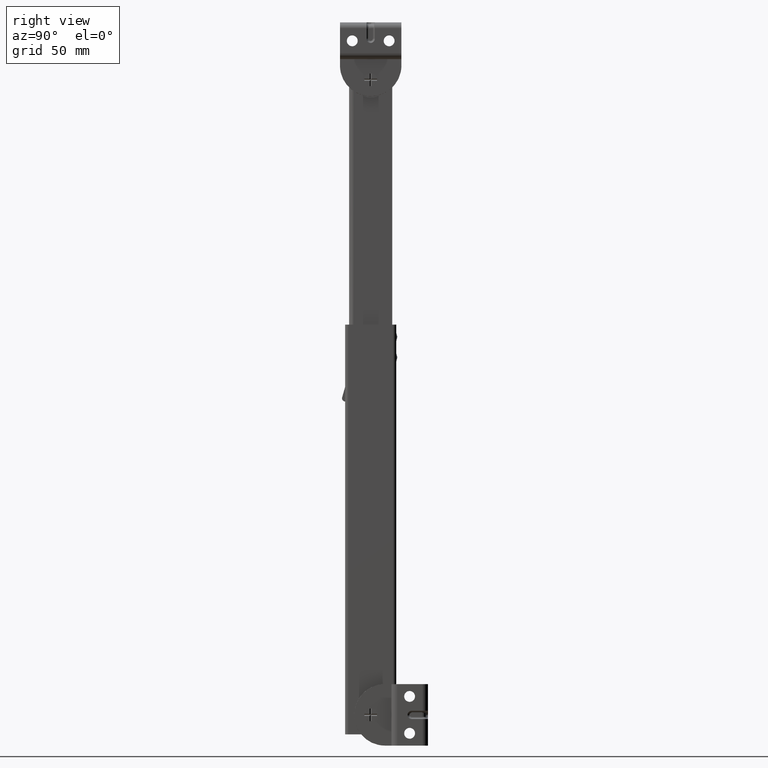
[diagram: clean part render]
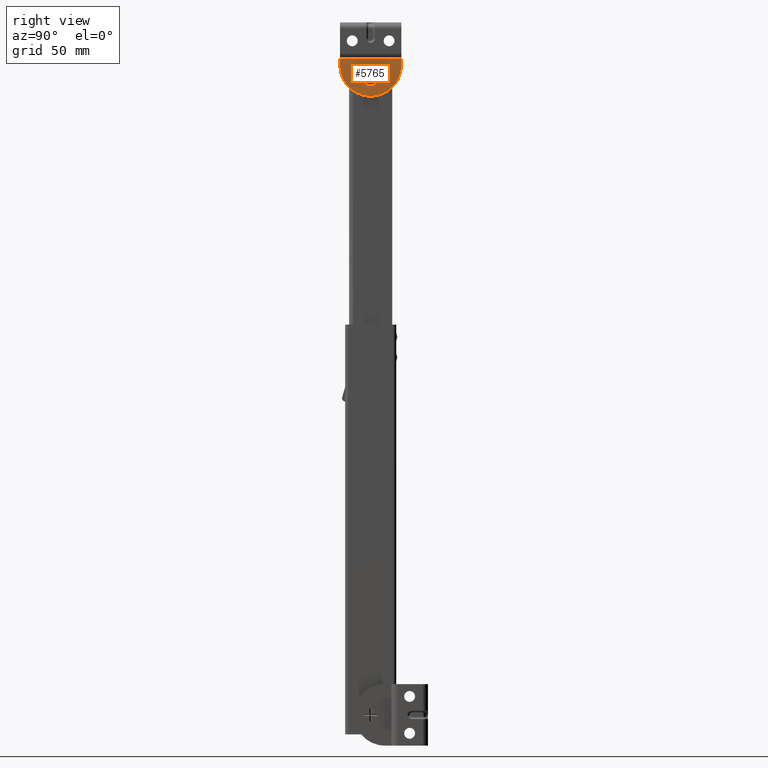
[diagram: same view with one face highlighted and labeled with its STEP entity id]
A machine part, right view. The second image highlights one B-rep face of the part: STEP entity #5765.
In plain terms, the highlighted face is a freeform B-spline surface patch.
Its self-contained STEP definition (entity closure, byte-faithful):
#2996=CARTESIAN_POINT('',(14.899993999999960,3.026411951911372,310.378590408394470));
#2997=VERTEX_POINT('',#2996);
#3003=CARTESIAN_POINT('',(14.899993999999960,5.684342E-014,313.050000000000010));
#3004=VERTEX_POINT('',#3003);
#3005=CARTESIAN_POINT('',(14.899993999999960,5.684342E-014,313.050000000000010));
#3006=CARTESIAN_POINT('',(14.899993999999959,2.692230726780663,313.050000000000130));
#3007=CARTESIAN_POINT('',(14.899993999999966,3.026411951911372,310.378590408394530));
#3015=(BOUNDED_CURVE()B_SPLINE_CURVE(2,(#3005,#3006,#3007),.UNSPECIFIED.,.F.,.U.)B_SPLINE_CURVE_WITH_KNOTS((3,3),(0.500000000000000,0.728526070800710),.UNSPECIFIED.)CURVE()GEOMETRIC_REPRESENTATION_ITEM()RATIONAL_B_SPLINE_CURVE((1.0,0.732265054161557,0.954005429831116))REPRESENTATION_ITEM(''));
#3016=EDGE_CURVE('',#3004,#2997,#3015,.T.);
#3018=CARTESIAN_POINT('',(14.899993999999960,-3.049883865324402,309.973384064293380));
#3019=VERTEX_POINT('',#3018);
#3020=CARTESIAN_POINT('',(14.899993999999957,-3.049883865324401,309.973384064293440));
#3021=CARTESIAN_POINT('',(14.899993999999957,-3.049999999999943,309.986691777560220));
#3022=CARTESIAN_POINT('',(14.899993999999960,-3.049999999999943,310.0));
#3023=CARTESIAN_POINT('',(14.899993999999957,-3.049999999999942,313.050000000000010));
#3024=CARTESIAN_POINT('',(14.899993999999960,5.684342E-014,313.050000000000010));
#3032=(BOUNDED_CURVE()B_SPLINE_CURVE(2,(#3020,#3021,#3022,#3023,#3024),.UNSPECIFIED.,.F.,.U.)B_SPLINE_CURVE_WITH_KNOTS((3,2,3),(0.248460105383573,0.250000000000000,0.500000000000000),.UNSPECIFIED.)CURVE()GEOMETRIC_REPRESENTATION_ITEM()RATIONAL_B_SPLINE_CURVE((0.996414027449074,0.998195901236644,1.0,0.707106781186547,1.0))REPRESENTATION_ITEM(''));
#3033=EDGE_CURVE('',#3019,#3004,#3032,.T.);
#3113=CARTESIAN_POINT('',(14.899993999999960,5.684342E-014,306.949999999999990));
#3114=VERTEX_POINT('',#3113);
#3115=CARTESIAN_POINT('',(14.899993999999960,5.684342E-014,306.949999999999990));
#3116=CARTESIAN_POINT('',(14.899993999999966,-3.023499187483509,306.949999999999990));
#3117=CARTESIAN_POINT('',(14.899993999999964,-3.049883865324402,309.973384064293440));
#3125=(BOUNDED_CURVE()B_SPLINE_CURVE(2,(#3115,#3116,#3117),.UNSPECIFIED.,.F.,.U.)B_SPLINE_CURVE_WITH_KNOTS((3,3),(0.0,0.248460105383573),.UNSPECIFIED.)CURVE()GEOMETRIC_REPRESENTATION_ITEM()RATIONAL_B_SPLINE_CURVE((1.0,0.708910879949903,0.996414027449074))REPRESENTATION_ITEM(''));
#3126=EDGE_CURVE('',#3114,#3019,#3125,.T.);
#3128=CARTESIAN_POINT('',(14.899993999999964,3.026411951911372,310.378590408394530));
#3129=CARTESIAN_POINT('',(14.899993999999964,3.050000000000057,310.190030031052290));
#3130=CARTESIAN_POINT('',(14.899993999999960,3.050000000000057,310.0));
#3131=CARTESIAN_POINT('',(14.899993999999957,3.050000000000057,306.949999999999930));
#3132=CARTESIAN_POINT('',(14.899993999999960,5.684342E-014,306.949999999999990));
#3140=(BOUNDED_CURVE()B_SPLINE_CURVE(2,(#3128,#3129,#3130,#3131,#3132),.UNSPECIFIED.,.F.,.U.)B_SPLINE_CURVE_WITH_KNOTS((3,2,3),(0.728526070800710,0.750000000000000,1.0),.UNSPECIFIED.)CURVE()GEOMETRIC_REPRESENTATION_ITEM()RATIONAL_B_SPLINE_CURVE((0.954005429831116,0.974841727024991,1.0,0.707106781186547,1.0))REPRESENTATION_ITEM(''));
#3141=EDGE_CURVE('',#2997,#3114,#3140,.T.);
#5370=CARTESIAN_POINT('',(14.899994000000000,-15.0,317.0));
#5371=VERTEX_POINT('',#5370);
#5396=CARTESIAN_POINT('',(14.899994000000000,15.0,317.0));
#5397=VERTEX_POINT('',#5396);
#5403=CARTESIAN_POINT('',(14.899994000000000,15.000000000000060,317.0));
#5404=CARTESIAN_POINT('',(14.899994000000000,15.000000000000055,301.999999999999940));
#5405=CARTESIAN_POINT('',(14.899994000000000,5.551115E-014,302.0));
#5406=CARTESIAN_POINT('',(14.899994000000000,-14.999999999999941,301.999999999999940));
#5407=CARTESIAN_POINT('',(14.899994000000000,-14.999999999999940,317.0));
#5415=(BOUNDED_CURVE()B_SPLINE_CURVE(2,(#5403,#5404,#5405,#5406,#5407),.UNSPECIFIED.,.F.,.U.)B_SPLINE_CURVE_WITH_KNOTS((3,2,3),(0.0,0.500000000000000,1.0),.UNSPECIFIED.)CURVE()GEOMETRIC_REPRESENTATION_ITEM()RATIONAL_B_SPLINE_CURVE((1.0,0.707106781186547,1.0,0.707106781186547,1.0))REPRESENTATION_ITEM(''));
#5416=EDGE_CURVE('',#5397,#5371,#5415,.T.);
#5468=CARTESIAN_POINT('',(14.899994000000000,-15.0,320.100006000000010));
#5469=VERTEX_POINT('',#5468);
#5470=CARTESIAN_POINT('',(14.899994000000000,-15.0,320.100006000000010));
#5471=CARTESIAN_POINT('',(14.899994000000000,-15.0,317.0));
#5472=QUASI_UNIFORM_CURVE('',1,(#5470,#5471),.UNSPECIFIED.,.F.,.U.);
#5473=EDGE_CURVE('',#5469,#5371,#5472,.T.);
#5581=CARTESIAN_POINT('',(14.899994000000000,15.0,320.100006000000010));
#5582=VERTEX_POINT('',#5581);
#5588=CARTESIAN_POINT('',(14.899994000000000,15.0,320.100006000000010));
#5589=CARTESIAN_POINT('',(14.899994000000000,15.0,317.0));
#5590=QUASI_UNIFORM_CURVE('',1,(#5588,#5589),.UNSPECIFIED.,.F.,.U.);
#5591=EDGE_CURVE('',#5582,#5397,#5590,.T.);
#5744=CARTESIAN_POINT('',(14.899994000000000,16.498499941854170,301.095904735381910));
#5745=CARTESIAN_POINT('',(14.899994000000000,16.498499941854170,321.004101750098700));
#5746=CARTESIAN_POINT('',(14.899994000000000,-16.498500746516878,301.095904735381910));
#5747=CARTESIAN_POINT('',(14.899994000000000,-16.498500746516878,321.004101750098700));
#5748=B_SPLINE_SURFACE_WITH_KNOTS('',1,1,((#5744,#5746),(#5745,#5747)),.UNSPECIFIED.,.F.,.F.,.U.,(2,2),(2,2),(0.0,19.908197014716851),(0.0,32.997000688371060),.UNSPECIFIED.);
#5749=ORIENTED_EDGE('',*,*,#5591,.F.);
#5750=CARTESIAN_POINT('',(14.899994000000000,15.0,320.100006000000010));
#5751=CARTESIAN_POINT('',(14.899994000000000,-15.0,320.100006000000010));
#5752=QUASI_UNIFORM_CURVE('',1,(#5750,#5751),.UNSPECIFIED.,.F.,.U.);
#5753=EDGE_CURVE('',#5582,#5469,#5752,.T.);
#5754=ORIENTED_EDGE('',*,*,#5753,.T.);
#5755=ORIENTED_EDGE('',*,*,#5473,.T.);
#5756=ORIENTED_EDGE('',*,*,#5416,.F.);
#5757=EDGE_LOOP('',(#5749,#5754,#5755,#5756));
#5758=FACE_OUTER_BOUND('',#5757,.T.);
#5759=ORIENTED_EDGE('',*,*,#3126,.T.);
#5760=ORIENTED_EDGE('',*,*,#3033,.T.);
#5761=ORIENTED_EDGE('',*,*,#3016,.T.);
#5762=ORIENTED_EDGE('',*,*,#3141,.T.);
#5763=EDGE_LOOP('',(#5759,#5760,#5761,#5762));
#5764=FACE_BOUND('',#5763,.T.);
#5765=ADVANCED_FACE('',(#5758,#5764),#5748,.T.);